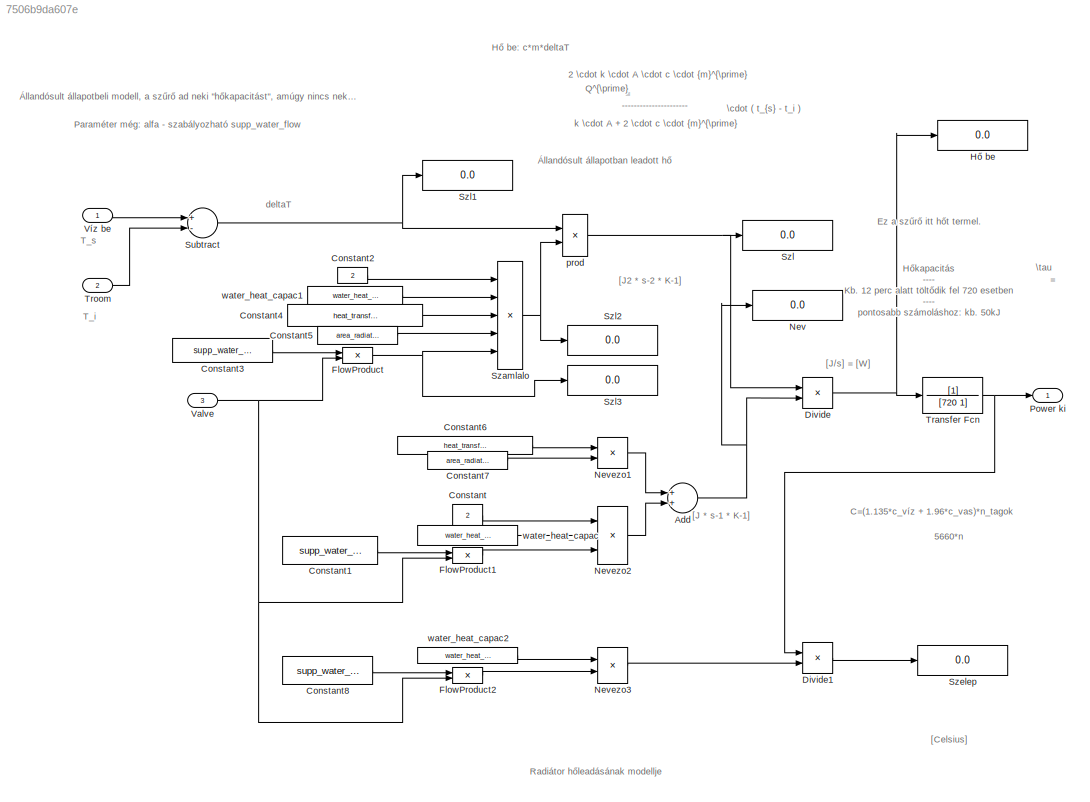
MODEL slx_7506b9da607e
KIND model
CONFIG AbsTol = auto
CONFIG EnableMultiTasking = off
CONFIG FixedStep = auto
CONFIG MaxStep = auto
CONFIG MinStep = auto
CONFIG RelTol = 1e-3
CONFIG SampleTimeConstraint = Unconstrained
CONFIG Solver = VariableStepAuto
CONFIG SolverName = VariableStepAuto
CONFIG StartTime = 0.0
CONFIG StopTime = 10.0
WORKSPACE source: MATLAB code (in-file)
WORKSPACE code: househeat_data_szakdoga
BLOCK [Sum] Add
  InputSameDT = off
  OutDataTypeStr = Inherit: Inherit via internal rule
  Ports = [2, 1]
  SaturateOnIntegerOverflow = off
BLOCK [Constant] Constant
  Value = 2
BLOCK [Constant] Constant1
  Value = supp_water_flow
BLOCK [Constant] Constant2
  Value = 2
BLOCK [Constant] Constant3
  Value = supp_water_flow
BLOCK [Constant] Constant4
  Value = heat_transfer_const_radiator
BLOCK [Constant] Constant5
  Value = area_radiator
BLOCK [Constant] Constant6
  Value = heat_transfer_const_radiator
BLOCK [Constant] Constant7
  Value = area_radiator
BLOCK [Constant] Constant8
  Value = supp_water_flow
BLOCK [Product] Divide
  InputSameDT = off
  Inputs = */
  OutDataTypeStr = Inherit: Inherit via internal rule
  Ports = [2, 1]
  RndMeth = Floor
  SaturateOnIntegerOverflow = off
BLOCK [Product] Divide1
  Commented = on
  InputSameDT = off
  Inputs = */
  OutDataTypeStr = Inherit: Inherit via internal rule
  Ports = [2, 1]
  RndMeth = Floor
  SaturateOnIntegerOverflow = off
BLOCK [Product] FlowProduct
  InputSameDT = off
  OutDataTypeStr = Inherit: Inherit via internal rule
  Ports = [2, 1]
  RndMeth = Floor
  SaturateOnIntegerOverflow = off
BLOCK [Product] FlowProduct1
  InputSameDT = off
  OutDataTypeStr = Inherit: Inherit via internal rule
  Ports = [2, 1]
  RndMeth = Floor
  SaturateOnIntegerOverflow = off
BLOCK [Product] FlowProduct2
  InputSameDT = off
  OutDataTypeStr = Inherit: Inherit via internal rule
  Ports = [2, 1]
  RndMeth = Floor
  SaturateOnIntegerOverflow = off
BLOCK [Display] Hő be
  Decimation = 1
  Ports = [1]
BLOCK [Display] Nev
  Decimation = 1
  Ports = [1]
BLOCK [Product] Nevezo1
  InputSameDT = off
  OutDataTypeStr = Inherit: Inherit via internal rule
  Ports = [2, 1]
  RndMeth = Floor
  SaturateOnIntegerOverflow = off
BLOCK [Product] Nevezo2
  InputSameDT = off
  Inputs = 3
  OutDataTypeStr = Inherit: Inherit via internal rule
  Ports = [3, 1]
  RndMeth = Floor
  SaturateOnIntegerOverflow = off
BLOCK [Product] Nevezo3
  InputSameDT = off
  OutDataTypeStr = Inherit: Inherit via internal rule
  Ports = [2, 1]
  RndMeth = Floor
  SaturateOnIntegerOverflow = off
BLOCK [Outport] Power ki
  IconDisplay = Port number
BLOCK [Sum] Subtract
  InputSameDT = off
  Inputs = +-
  OutDataTypeStr = Inherit: Inherit via internal rule
  Ports = [2, 1]
  SaturateOnIntegerOverflow = off
BLOCK [Product] Szamlalo
  InputSameDT = off
  Inputs = 5
  OutDataTypeStr = Inherit: Inherit via internal rule
  Ports = [5, 1]
  RndMeth = Floor
  SaturateOnIntegerOverflow = off
BLOCK [Display] Szelep
  Commented = on
  Decimation = 1
  Ports = [1]
BLOCK [Display] Szl
  Decimation = 1
  Format = long
  Ports = [1]
BLOCK [Display] Szl1
  Decimation = 1
  Ports = [1]
BLOCK [Display] Szl2
  Decimation = 1
  Ports = [1]
BLOCK [Display] Szl3
  Decimation = 1
  Ports = [1]
BLOCK [TransferFcn] Transfer Fcn
  Commented = through
  Denominator = [720 1]
BLOCK [Inport] Troom
  IconDisplay = Port number
  Port = 2
BLOCK [Inport] Valve
  IconDisplay = Port number
  Port = 3
BLOCK [Inport] Víz be
  IconDisplay = Port number
BLOCK [Product] prod
  InputSameDT = off
  Inputs = **
  OutDataTypeStr = Inherit: Inherit via internal rule
  Ports = [2, 1]
  RndMeth = Floor
  SaturateOnIntegerOverflow = off
BLOCK [Constant] water_heat_capac
  Value = water_heat_capacity
BLOCK [Constant] water_heat_capac1
  Value = water_heat_capacity
BLOCK [Constant] water_heat_capac2
  Value = water_heat_capacity
ANNOTATION (root): 2 \cdot k \cdot A \cdot c \cdot {m}^{\prime}
ANNOTATION (root): 5660*n
ANNOTATION (root): Radiátor hőleadásának modellje
ANNOTATION (root): =
ANNOTATION (root): Állandósult állapotban leadott hő
ANNOTATION (root): ----------------------
ANNOTATION (root): C=(1.135*c_víz + 1.96*c_vas)*n_tagok
ANNOTATION (root): Ez a szűrő itt hőt termel.
ANNOTATION (root): Hő be: c*m*deltaT
ANNOTATION (root): Hőkapacitás ---- Kb. 12 perc alatt töltődik fel 720 esetben ---- pontosabb számoláshoz: kb. 50kJ
ANNOTATION (root): Paraméter még: alfa - szabályozható supp_water_flow
ANNOTATION (root): Q^{\prime}
ANNOTATION (root): T_i
ANNOTATION (root): T_s
ANNOTATION (root): [Celsius]
ANNOTATION (root): [J * s-1 * K-1]
ANNOTATION (root): [J/s] = [W]
ANNOTATION (root): [J2 * s-2 * K-1]
ANNOTATION (root): \cdot ( t_{s} - t_i )
ANNOTATION (root): \tau
ANNOTATION (root): deltaT
ANNOTATION (root): k \cdot A + 2 \cdot c \cdot {m}^{\prime}
ANNOTATION (root): Állandósult állapotbeli modell, a szűrő ad neki "hőkapacitást", amúgy nincs neki.
NET Add:1 -> Divide:2, Nev:1
LINE Constant1:1 -> FlowProduct1:1
LINE Constant2:1 -> Szamlalo:1
LINE Constant3:1 -> FlowProduct:1
LINE Constant4:1 -> Szamlalo:3
LINE Constant5:1 -> Szamlalo:4
LINE Constant6:1 -> Nevezo1:1
LINE Constant7:1 -> Nevezo1:2
LINE Constant8:1 -> FlowProduct2:1
LINE Constant:1 -> Nevezo2:1
LINE Divide1:1 -> Szelep:1
NET Divide:1 -> Hő be:1, Transfer Fcn:1
LINE FlowProduct1:1 -> Nevezo2:3
LINE FlowProduct2:1 -> Nevezo3:2
NET FlowProduct:1 -> Szamlalo:5, Szl3:1
LINE Nevezo1:1 -> Add:1
LINE Nevezo2:1 -> Add:2
LINE Nevezo3:1 -> Divide1:2
NET Subtract:1 -> Szl1:1, prod:1
NET Szamlalo:1 -> Szl2:1, prod:2
NET Transfer Fcn:1 -> Divide1:1, Power ki:1
LINE Troom:1 -> Subtract:2
NET Valve:1 -> FlowProduct1:2, FlowProduct2:2, FlowProduct:2
LINE Víz be:1 -> Subtract:1
NET prod:1 -> Divide:1, Szl:1
LINE water_heat_capac1:1 -> Szamlalo:2
LINE water_heat_capac2:1 -> Nevezo3:1
LINE water_heat_capac:1 -> Nevezo2:2
note: NET lines group one-source signal fan-out (src -> all destinations, sorted); 1:1 wires keep LINE
